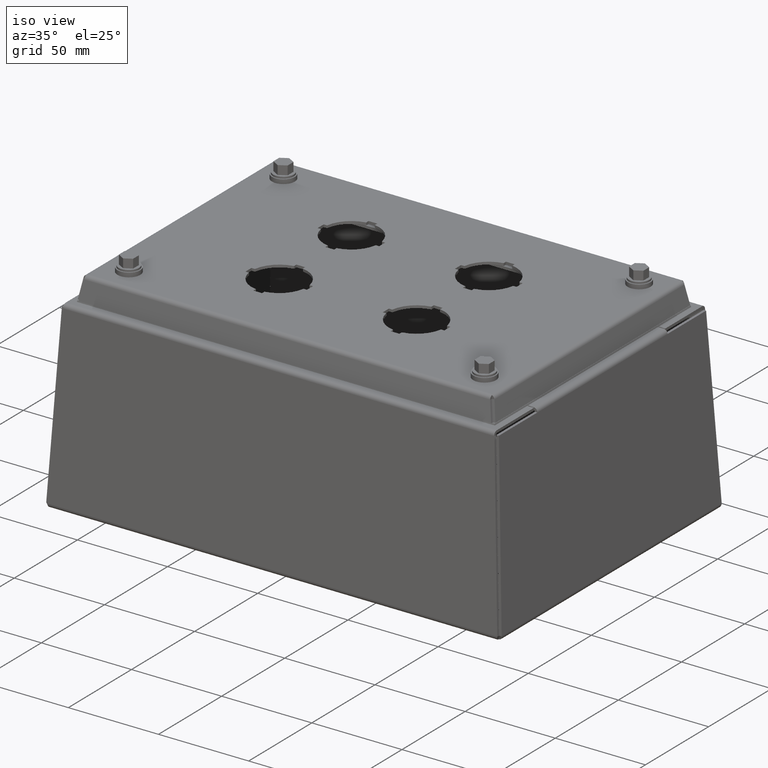
[diagram: clean part render]
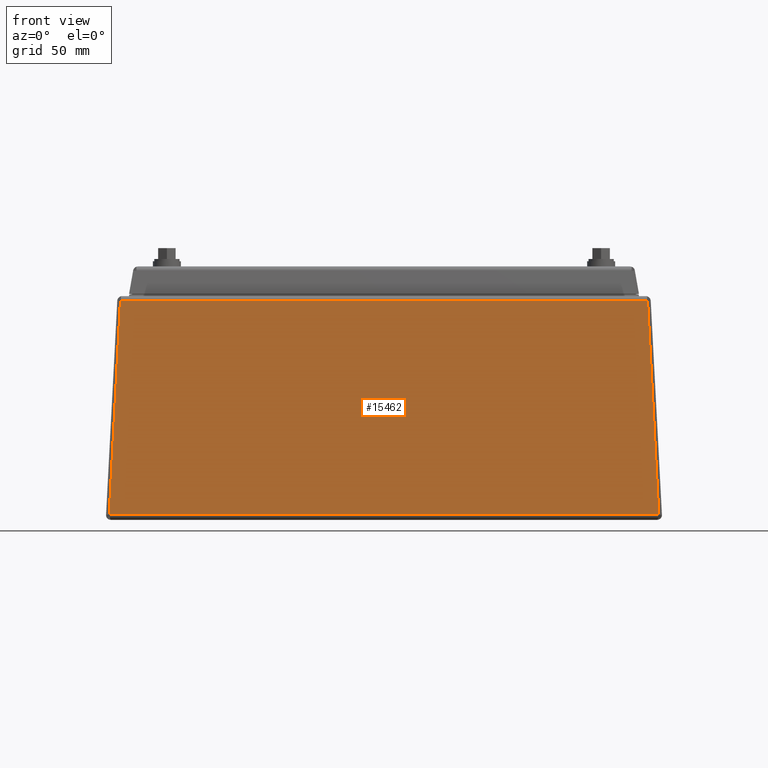
[diagram: tour spotlight — one face highlighted and labeled with its STEP entity id]
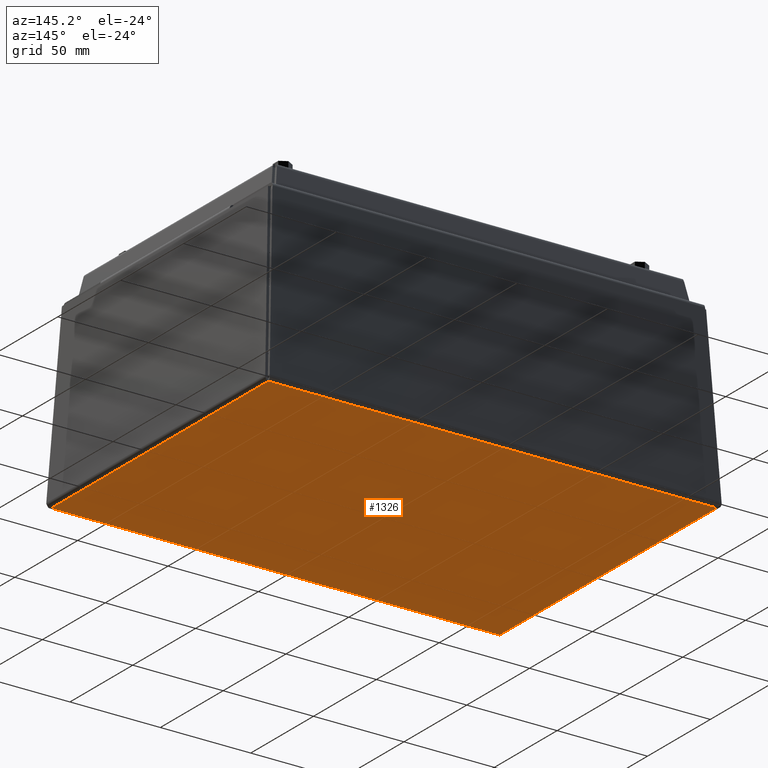
[diagram: tour spotlight — one face highlighted and labeled with its STEP entity id]
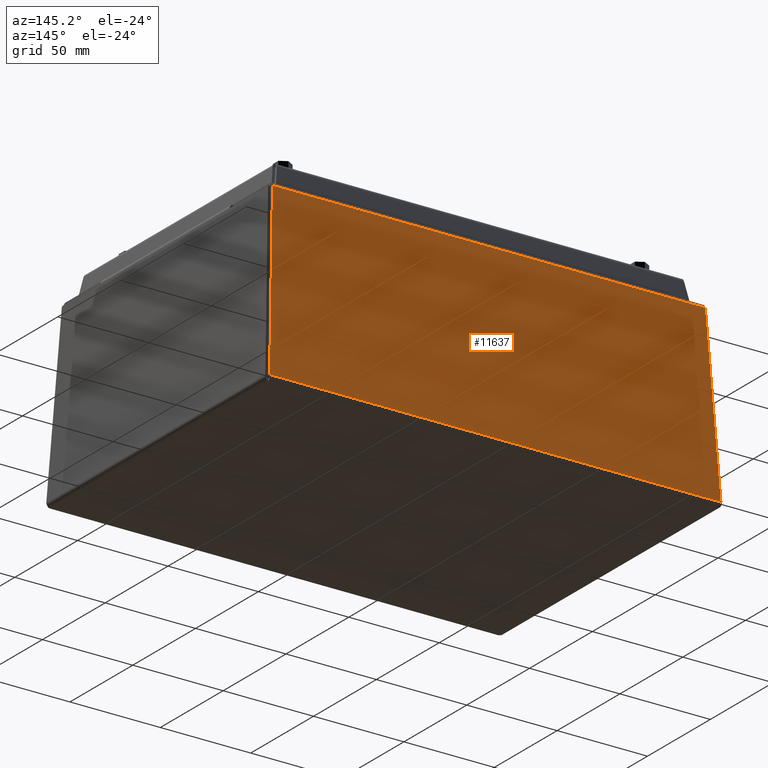
[diagram: tour spotlight — one face highlighted and labeled with its STEP entity id]
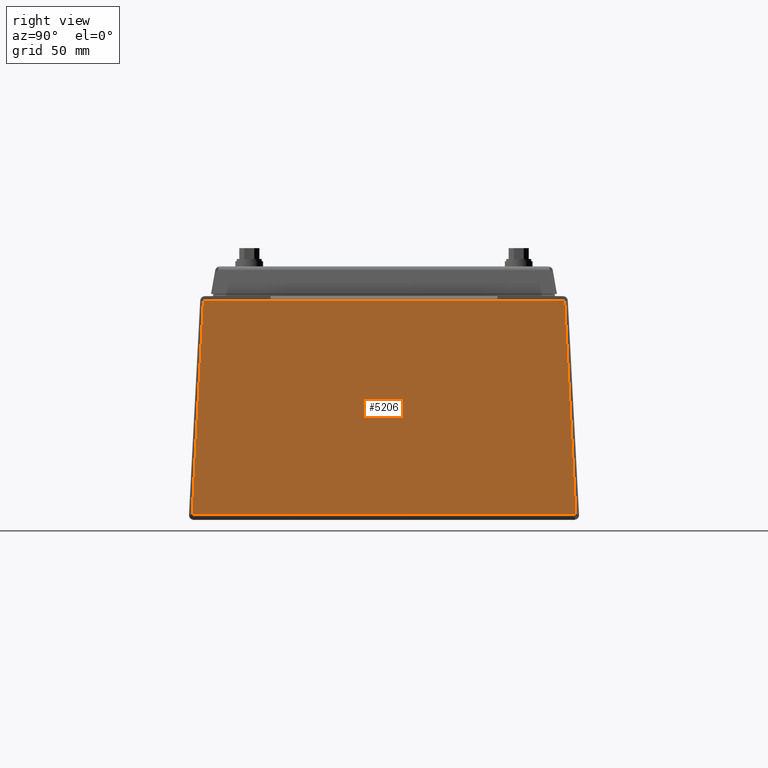
[diagram: tour spotlight — one face highlighted and labeled with its STEP entity id]
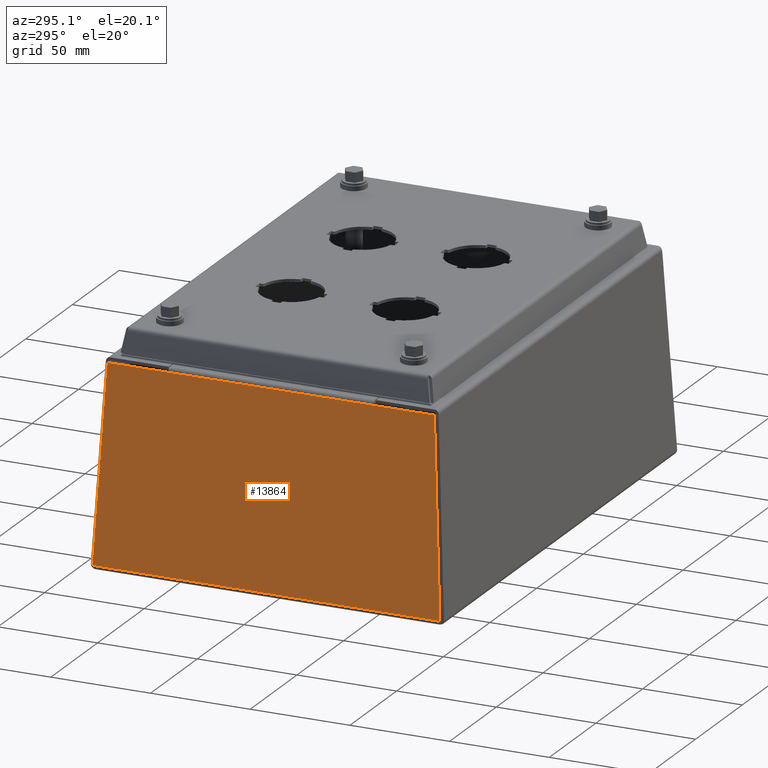
[diagram: tour spotlight — one face highlighted and labeled with its STEP entity id]
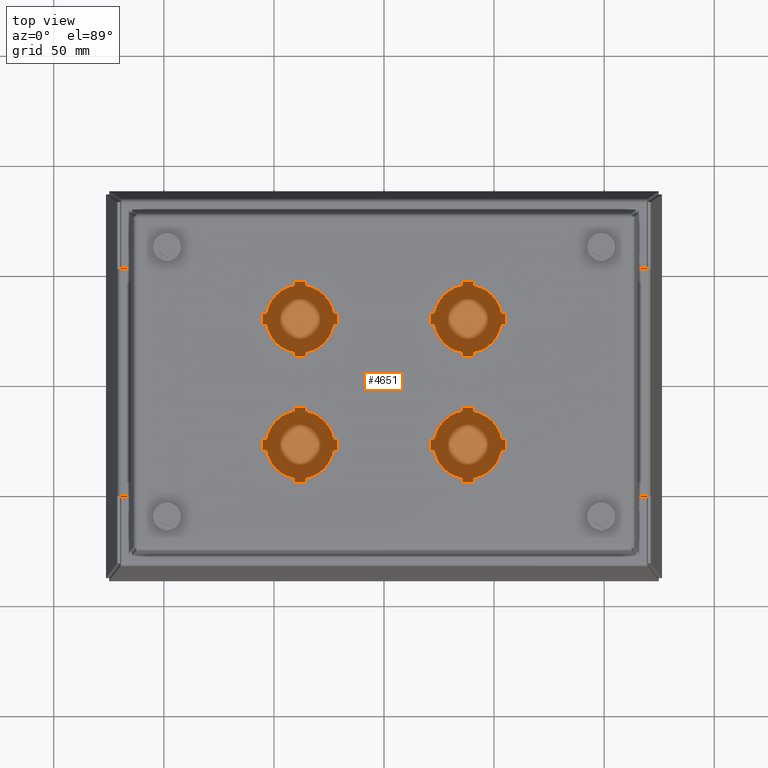
[diagram: tour spotlight — one face highlighted and labeled with its STEP entity id]
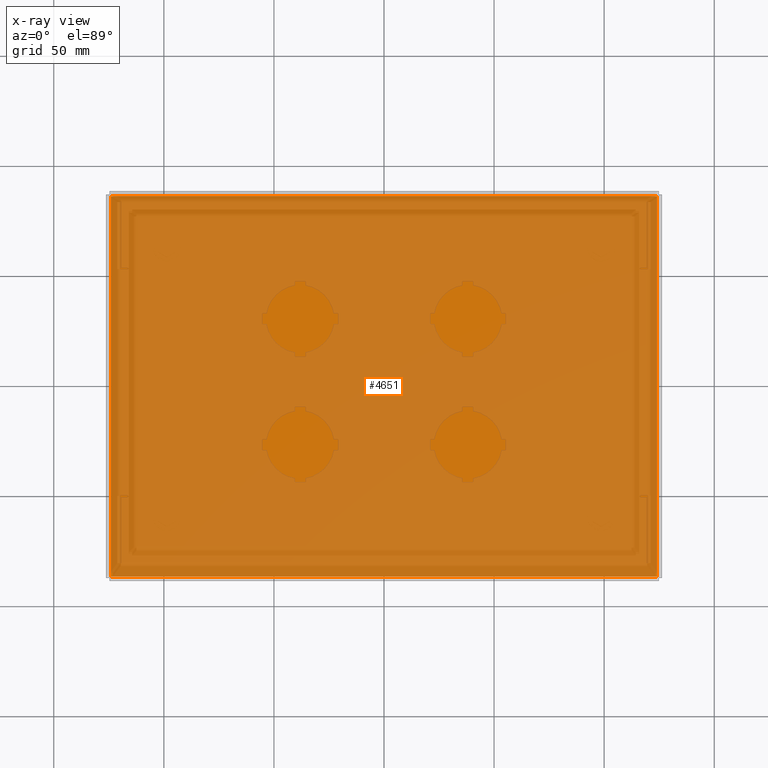
[diagram: x-ray of the same camera — body ghosted, this tour face saturated]
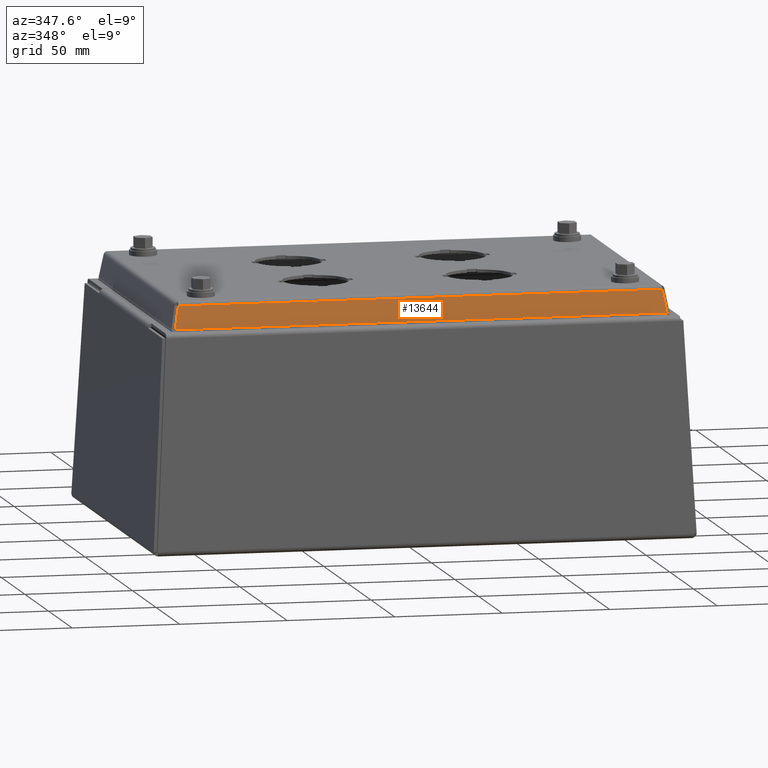
[diagram: tour spotlight — one face highlighted and labeled with its STEP entity id]
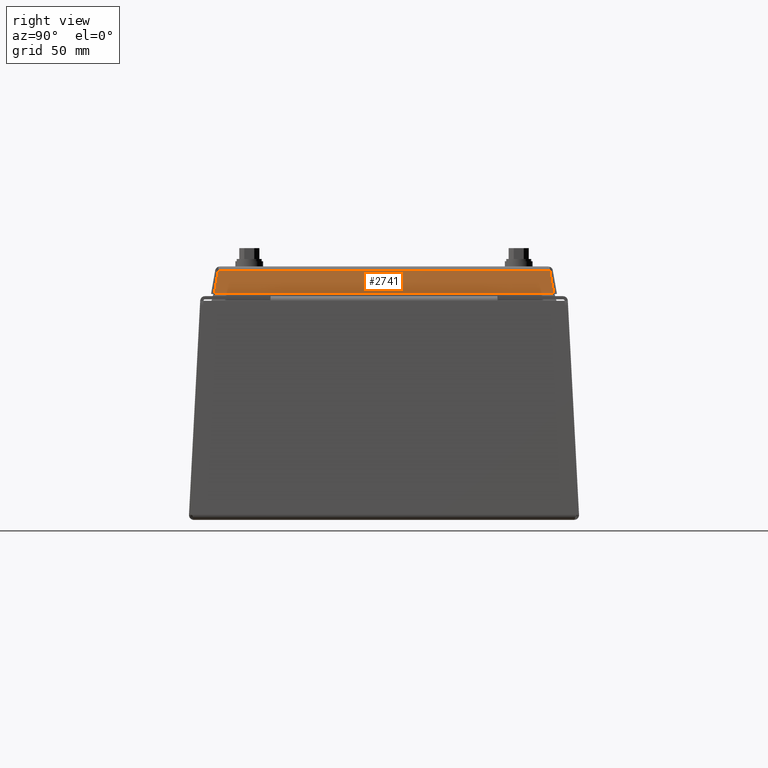
[diagram: tour spotlight — one face highlighted and labeled with its STEP entity id]
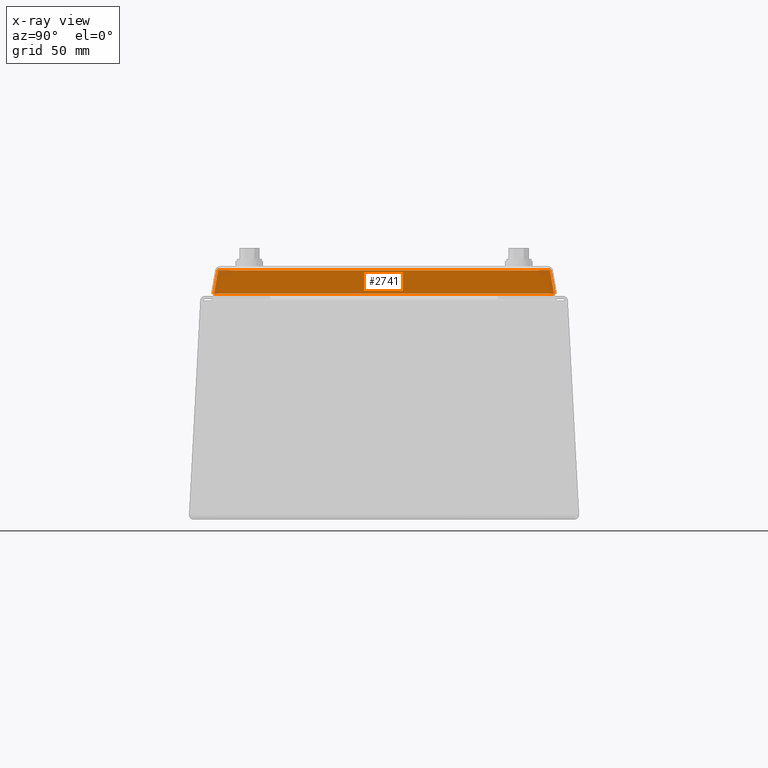
[diagram: x-ray of the same camera — body ghosted, this tour face saturated]
A machine part: a face-by-face anatomy tour. The part has 515 B-rep faces; the first image is the clean iso view, then the 8 largest visible faces are spotlighted one at a time (largest first), each with its STEP entity span.

Face 1 — front view, entity #15462. In plain terms, the highlighted planar face has unit normal (0, -0.9986, 0.0523).
Definition (entity closure, byte-faithful):
#45 = VECTOR ( 'NONE', #12166, 39.37007874015748143 ) ;
#470 = EDGE_CURVE ( 'NONE', #7317, #12452, #8490, .T. ) ;
#703 = CARTESIAN_POINT ( 'NONE',  ( 4.218015990875590759, -3.292733524574771309, 3.813020610680803113 ) ) ;
#857 = DIRECTION ( 'NONE',  ( 4.699147227556891862E-17, -0.9986295347545732781, 0.05233595624295531851 ) ) ;
#1000 = CARTESIAN_POINT ( 'NONE',  ( 4.913789277476104722, -3.487822516355748359, 0.09050089223689128382 ) ) ;
#1113 = PLANE ( 'NONE',  #10257 ) ;
#1189 = ORIENTED_EDGE ( 'NONE', *, *, #3841, .T. ) ;
#1401 = VECTOR ( 'NONE', #14367, 39.37007874015748143 ) ;
#2297 = CARTESIAN_POINT ( 'NONE',  ( 4.717332631294856249, -3.291365870174481678, 3.839117011234301380 ) ) ;
#2414 = ORIENTED_EDGE ( 'NONE', *, *, #8532, .T. ) ;
#3382 = VERTEX_POINT ( 'NONE', #2297 ) ;
#3381 = DIRECTION ( 'NONE',  ( 0.000000000000000000, -0.05233595624294379300, -0.9986295347545738332 ) ) ;
#3493 = DIRECTION ( 'NONE',  ( -0.05226442768871197159, 0.05226442768871385897, 0.9972646886342374506 ) ) ;
#3841 = EDGE_CURVE ( 'NONE', #12625, #3382, #12889, .T. ) ;
#3865 = CARTESIAN_POINT ( 'NONE',  ( -4.706732014307491774, -3.287205537260265320, 3.918500892236907784 ) ) ;
#3994 = EDGE_LOOP ( 'NONE', ( #1189, #2414, #7008, #9421, #12482, #9590 ) ) ;
#4446 = CARTESIAN_POINT ( 'NONE',  ( -4.913789277431614089, -3.487822516351799074, 0.09050089231220830033 ) ) ;
#4598 = VERTEX_POINT ( 'NONE', #6854 ) ;
#5165 = CARTESIAN_POINT ( 'NONE',  ( -4.218015990875590759, -3.292733524574772197, 3.813020610680823541 ) ) ;
#5233 = DIRECTION ( 'NONE',  ( -4.243953380302051535E-16, -0.9986295347545732781, 0.05233595624295531851 ) ) ;
#5418 = CARTESIAN_POINT ( 'NONE',  ( -4.717332631295001910, -3.291365870174635777, 3.839117011231374388 ) ) ;
#5886 = DIRECTION ( 'NONE',  ( 1.593610758070320204E-17, -0.9986295347545739443, 0.05233595624294379994 ) ) ;
#6006 = CARTESIAN_POINT ( 'NONE',  ( -4.717332631294845591, -3.291365870174480346, 3.839117011234323140 ) ) ;
#6130 = AXIS2_PLACEMENT_3D ( 'NONE', #703, #857, #15155 ) ;
#6155 = AXIS2_PLACEMENT_3D ( 'NONE', #5165, #5233, #11343 ) ;
#6300 = EDGE_CURVE ( 'NONE', #12625, #12452, #7377, .T. ) ;
#6334 = DIRECTION ( 'NONE',  ( -1.000000000000000000, -1.591426769911647489E-17, 8.340314290265274445E-19 ) ) ;
#6854 = CARTESIAN_POINT ( 'NONE',  ( 4.706732014307489109, -3.287205537260265320, 3.918500892236901567 ) ) ;
#7008 = ORIENTED_EDGE ( 'NONE', *, *, #14915, .T. ) ;
#7216 = CARTESIAN_POINT ( 'NONE',  ( 4.884940376366849968, -3.487822516355744806, 0.09050089223689113116 ) ) ;
#7263 = VERTEX_POINT ( 'NONE', #3865 ) ;
#7317 = VERTEX_POINT ( 'NONE', #5418 ) ;
#7377 = LINE ( 'NONE', #7216, #45 ) ;
#8490 = LINE ( 'NONE', #6006, #1401 ) ;
#8532 = EDGE_CURVE ( 'NONE', #3382, #4598, #9127, .T. ) ;
#8651 = LINE ( 'NONE', #13440, #12990 ) ;
#9127 = CIRCLE ( 'NONE', #6130, 0.5000000000000002220 ) ;
#9254 = FACE_OUTER_BOUND ( 'NONE', #3994, .T. ) ;
#9395 = EDGE_CURVE ( 'NONE', #7263, #7317, #12894, .T. ) ;
#9421 = ORIENTED_EDGE ( 'NONE', *, *, #9395, .T. ) ;
#9590 = ORIENTED_EDGE ( 'NONE', *, *, #6300, .F. ) ;
#10257 = AXIS2_PLACEMENT_3D ( 'NONE', #14253, #5886, #3381 ) ;
#11343 = DIRECTION ( 'NONE',  ( 0.000000000000000000, -0.05233595624295556137, -0.9986295347545732781 ) ) ;
#11974 = CARTESIAN_POINT ( 'NONE',  ( 4.913789277476103834, -3.487822516355746583, 0.09050089223689214424 ) ) ;
#12166 = DIRECTION ( 'NONE',  ( -1.000000000000000000, -5.592387589582129514E-17, 0.000000000000000000 ) ) ;
#12452 = VERTEX_POINT ( 'NONE', #4446 ) ;
#12482 = ORIENTED_EDGE ( 'NONE', *, *, #470, .T. ) ;
#12625 = VERTEX_POINT ( 'NONE', #11974 ) ;
#12889 = LINE ( 'NONE', #1000, #12994 ) ;
#12894 = CIRCLE ( 'NONE', #6155, 0.5000000000000002220 ) ;
#12990 = VECTOR ( 'NONE', #6334, 39.37007874015748143 ) ;
#12994 = VECTOR ( 'NONE', #3493, 39.37007874015748143 ) ;
#13440 = CARTESIAN_POINT ( 'NONE',  ( 34.23802301932976633, -3.287205537260265320, 3.918500892236906452 ) ) ;
#14253 = CARTESIAN_POINT ( 'NONE',  ( 34.23802301932976633, -3.489421883481012898, 0.05998314950584540672 ) ) ;
#14367 = DIRECTION ( 'NONE',  ( -0.05226442767690756691, -0.05226442768874618727, -0.9972646886348544015 ) ) ;
#14915 = EDGE_CURVE ( 'NONE', #4598, #7263, #8651, .T. ) ;
#15155 = DIRECTION ( 'NONE',  ( 0.000000000000000000, 0.05233595624295556137, 0.9986295347545732781 ) ) ;
#15462 = ADVANCED_FACE ( 'NONE', ( #9254 ), #1113, .T. ) ;

Face 2 — auxiliary view, entity #1326. In plain terms, the highlighted planar face has unit normal (0, 0, -1).
Definition (entity closure, byte-faithful):
#38 = VECTOR ( 'NONE', #7929, 39.37007874015748143 ) ;
#203 = CARTESIAN_POINT ( 'NONE',  ( -4.884940376378950511, 3.401940376364346985, -2.475737244258238603E-16 ) ) ;
#765 = DIRECTION ( 'NONE',  ( -1.000000000000000000, 0.000000000000000000, -0.000000000000000000 ) ) ;
#1326 = ADVANCED_FACE ( 'NONE', ( #11250 ), #12649, .T. ) ;
#1346 = EDGE_CURVE ( 'NONE', #3281, #14490, #1690, .T. ) ;
#1690 = LINE ( 'NONE', #15067, #15148 ) ;
#1920 = CARTESIAN_POINT ( 'NONE',  ( 0.000000000000000000, -1.030117527368787498E-15, 0.000000000000000000 ) ) ;
#3234 = CARTESIAN_POINT ( 'NONE',  ( 4.884940376366849968, -1.030117527368787498E-15, 0.000000000000000000 ) ) ;
#3281 = VERTEX_POINT ( 'NONE', #12021 ) ;
#3371 = CARTESIAN_POINT ( 'NONE',  ( -4.884940376328239076, -3.401940376372323271, 0.000000000000000000 ) ) ;
#3803 = LINE ( 'NONE', #7045, #6261 ) ;
#3931 = EDGE_LOOP ( 'NONE', ( #10046, #10441, #12125, #11077 ) ) ;
#3988 = EDGE_CURVE ( 'NONE', #14490, #6293, #3803, .T. ) ;
#4645 = LINE ( 'NONE', #3234, #38 ) ;
#4836 = LINE ( 'NONE', #7343, #11980 ) ;
#6261 = VECTOR ( 'NONE', #13861, 39.37007874015748143 ) ;
#6293 = VERTEX_POINT ( 'NONE', #203 ) ;
#6424 = AXIS2_PLACEMENT_3D ( 'NONE', #1920, #6550, #765 ) ;
#6550 = DIRECTION ( 'NONE',  ( 0.000000000000000000, 0.000000000000000000, -1.000000000000000000 ) ) ;
#6695 = DIRECTION ( 'NONE',  ( -1.000000000000000000, 0.000000000000000000, -0.000000000000000000 ) ) ;
#7045 = CARTESIAN_POINT ( 'NONE',  ( -4.884940376366849968, -1.030117527368787498E-15, 0.000000000000000000 ) ) ;
#7343 = CARTESIAN_POINT ( 'NONE',  ( 0.000000000000000000, 3.401940376366845431, 0.000000000000000000 ) ) ;
#7929 = DIRECTION ( 'NONE',  ( -0.000000000000000000, -1.000000000000000000, -0.000000000000000000 ) ) ;
#10046 = ORIENTED_EDGE ( 'NONE', *, *, #1346, .T. ) ;
#10441 = ORIENTED_EDGE ( 'NONE', *, *, #3988, .T. ) ;
#11077 = ORIENTED_EDGE ( 'NONE', *, *, #11440, .T. ) ;
#11250 = FACE_OUTER_BOUND ( 'NONE', #3931, .T. ) ;
#11332 = CARTESIAN_POINT ( 'NONE',  ( 4.884940376366849968, 3.401940376366847207, 0.000000000000000000 ) ) ;
#11440 = EDGE_CURVE ( 'NONE', #12742, #3281, #4645, .T. ) ;
#11980 = VECTOR ( 'NONE', #14544, 39.37007874015748143 ) ;
#12021 = CARTESIAN_POINT ( 'NONE',  ( 4.884940376366551540, -3.401940376360905738, 0.000000000000000000 ) ) ;
#12125 = ORIENTED_EDGE ( 'NONE', *, *, #13823, .T. ) ;
#12649 = PLANE ( 'NONE',  #6424 ) ;
#12742 = VERTEX_POINT ( 'NONE', #11332 ) ;
#13823 = EDGE_CURVE ( 'NONE', #6293, #12742, #4836, .T. ) ;
#13861 = DIRECTION ( 'NONE',  ( 0.000000000000000000, 1.000000000000000000, 0.000000000000000000 ) ) ;
#14490 = VERTEX_POINT ( 'NONE', #3371 ) ;
#14544 = DIRECTION ( 'NONE',  ( 1.000000000000000000, -0.000000000000000000, 0.000000000000000000 ) ) ;
#15067 = CARTESIAN_POINT ( 'NONE',  ( 0.000000000000000000, -3.401940376366855645, 0.000000000000000000 ) ) ;
#15148 = VECTOR ( 'NONE', #6695, 39.37007874015748143 ) ;

Face 3 — auxiliary view, entity #11637. In plain terms, the highlighted planar face has unit normal (-0, 0.9986, 0.0523).
Definition (entity closure, byte-faithful):
#2080 = ORIENTED_EDGE ( 'NONE', *, *, #4168, .T. ) ;
#2434 = DIRECTION ( 'NONE',  ( 1.000000000000000000, 1.563808929424738898E-19, 8.195575321414053458E-21 ) ) ;
#2518 = CIRCLE ( 'NONE', #7006, 0.5000000000000001110 ) ;
#3251 = VECTOR ( 'NONE', #4867, 39.37007874015748143 ) ;
#3773 = CARTESIAN_POINT ( 'NONE',  ( -4.913789277476139361, 3.487822516355750135, 0.09050089223688556617 ) ) ;
#3941 = CARTESIAN_POINT ( 'NONE',  ( -4.717332631294856249, 3.291365870174480346, 3.839117011234340460 ) ) ;
#4168 = EDGE_CURVE ( 'NONE', #4599, #5706, #7438, .T. ) ;
#4599 = VERTEX_POINT ( 'NONE', #4724 ) ;
#4603 = CARTESIAN_POINT ( 'NONE',  ( 4.706732014307485557, 3.287205537260265764, 3.918500892236900235 ) ) ;
#4724 = CARTESIAN_POINT ( 'NONE',  ( -4.706732014307493550, 3.287205537260266652, 3.918500892236899791 ) ) ;
#4759 = VERTEX_POINT ( 'NONE', #13874 ) ;
#4867 = DIRECTION ( 'NONE',  ( 0.05226442768872069378, -0.05226442768871370631, 0.9972646886342370065 ) ) ;
#5059 = EDGE_CURVE ( 'NONE', #14006, #9050, #6367, .T. ) ;
#5128 = EDGE_LOOP ( 'NONE', ( #13912, #11633, #9949, #14795, #2080, #13574 ) ) ;
#5191 = DIRECTION ( 'NONE',  ( -1.565955016350548238E-19, 0.9986295347545739443, 0.05233595624294375831 ) ) ;
#5706 = VERTEX_POINT ( 'NONE', #4603 ) ;
#6197 = CARTESIAN_POINT ( 'NONE',  ( -34.23802301932976633, 3.287205537260267540, 3.918500892236906452 ) ) ;
#6367 = LINE ( 'NONE', #3773, #3251 ) ;
#6523 = PLANE ( 'NONE',  #12778 ) ;
#7006 = AXIS2_PLACEMENT_3D ( 'NONE', #10074, #10149, #14923 ) ;
#7038 = DIRECTION ( 'NONE',  ( -4.243953380302056959E-16, 0.9986295347545733891, 0.05233595624295416665 ) ) ;
#7438 = LINE ( 'NONE', #6197, #10252 ) ;
#8039 = EDGE_CURVE ( 'NONE', #14822, #4759, #8635, .T. ) ;
#8461 = EDGE_CURVE ( 'NONE', #9050, #4599, #12627, .T. ) ;
#8635 = LINE ( 'NONE', #14755, #10097 ) ;
#9050 = VERTEX_POINT ( 'NONE', #3941 ) ;
#9088 = CARTESIAN_POINT ( 'NONE',  ( -4.218015990875590759, 3.292733524574770421, 3.813020610680842637 ) ) ;
#9338 = EDGE_CURVE ( 'NONE', #14006, #4759, #13149, .T. ) ;
#9890 = CARTESIAN_POINT ( 'NONE',  ( -34.23802301932976633, 3.489421883481015119, 0.05998314950584704430 ) ) ;
#9902 = DIRECTION ( 'NONE',  ( 0.05226442767689800512, 0.05226442768874621503, -0.9972646886348549566 ) ) ;
#9949 = ORIENTED_EDGE ( 'NONE', *, *, #5059, .T. ) ;
#10074 = CARTESIAN_POINT ( 'NONE',  ( 4.218015990875590759, 3.292733524574773085, 3.813020610680772027 ) ) ;
#10097 = VECTOR ( 'NONE', #9902, 39.37007874015748143 ) ;
#10114 = FACE_OUTER_BOUND ( 'NONE', #5128, .T. ) ;
#10149 = DIRECTION ( 'NONE',  ( 4.699147227556886932E-17, 0.9986295347545733891, 0.05233595624295416665 ) ) ;
#10252 = VECTOR ( 'NONE', #2434, 39.37007874015748143 ) ;
#10643 = DIRECTION ( 'NONE',  ( 5.463695987328524859E-15, 0.05233595624295447890, -0.9986295347545735002 ) ) ;
#10714 = DIRECTION ( 'NONE',  ( 1.000000000000000000, 4.473910071665699667E-16, 0.000000000000000000 ) ) ;
#10866 = EDGE_CURVE ( 'NONE', #5706, #14822, #2518, .T. ) ;
#11633 = ORIENTED_EDGE ( 'NONE', *, *, #9338, .F. ) ;
#11637 = ADVANCED_FACE ( 'NONE', ( #10114 ), #6523, .T. ) ;
#11899 = CARTESIAN_POINT ( 'NONE',  ( -4.884940376366849968, 3.487822516355739033, 0.09050089223688498330 ) ) ;
#12381 = AXIS2_PLACEMENT_3D ( 'NONE', #9088, #7038, #10643 ) ;
#12627 = CIRCLE ( 'NONE', #12381, 0.5000000000000001110 ) ;
#12778 = AXIS2_PLACEMENT_3D ( 'NONE', #9890, #5191, #13565 ) ;
#13149 = LINE ( 'NONE', #11899, #15142 ) ;
#13565 = DIRECTION ( 'NONE',  ( 0.000000000000000000, -0.05233595624294375137, 0.9986295347545738332 ) ) ;
#13574 = ORIENTED_EDGE ( 'NONE', *, *, #10866, .T. ) ;
#13874 = CARTESIAN_POINT ( 'NONE',  ( 4.913789277431574121, 3.487822516351798185, 0.09050089231219959895 ) ) ;
#13912 = ORIENTED_EDGE ( 'NONE', *, *, #8039, .T. ) ;
#14006 = VERTEX_POINT ( 'NONE', #14037 ) ;
#14037 = CARTESIAN_POINT ( 'NONE',  ( -4.913789277476141137, 3.487822516355743918, 0.09050089223688999318 ) ) ;
#14689 = CARTESIAN_POINT ( 'NONE',  ( 4.717332631295001910, 3.291365870174638442, 3.839117011231317989 ) ) ;
#14755 = CARTESIAN_POINT ( 'NONE',  ( 4.717332631294845591, 3.291365870174484787, 3.839117011234268517 ) ) ;
#14795 = ORIENTED_EDGE ( 'NONE', *, *, #8461, .T. ) ;
#14822 = VERTEX_POINT ( 'NONE', #14689 ) ;
#14923 = DIRECTION ( 'NONE',  ( 0.000000000000000000, -0.05233595624295447890, 0.9986295347545735002 ) ) ;
#15142 = VECTOR ( 'NONE', #10714, 39.37007874015748143 ) ;

Face 4 — right view, entity #5206. In plain terms, the highlighted planar face has unit normal (0.9986, 0, 0.0523).
Definition (entity closure, byte-faithful):
#5 = VECTOR ( 'NONE', #14796, 39.37007874015748854 ) ;
#348 = EDGE_CURVE ( 'NONE', #15267, #1051, #10457, .T. ) ;
#490 = CARTESIAN_POINT ( 'NONE',  ( 4.770205537260276962, -3.230172298380632245, 3.918500892236894462 ) ) ;
#536 = CARTESIAN_POINT ( 'NONE',  ( 4.770205537260274298, -2.027732014307489283, 3.918500892236895794 ) ) ;
#759 = VECTOR ( 'NONE', #9205, 39.37007874015748143 ) ;
#1051 = VERTEX_POINT ( 'NONE', #11960 ) ;
#1150 = LINE ( 'NONE', #10544, #9034 ) ;
#1349 = VERTEX_POINT ( 'NONE', #536 ) ;
#1626 = VECTOR ( 'NONE', #13588, 39.37007874015748143 ) ;
#2056 = VERTEX_POINT ( 'NONE', #4942 ) ;
#2082 = CARTESIAN_POINT ( 'NONE',  ( 4.770205537260276074, 23.85702301932976610, 3.918500892236898014 ) ) ;
#2236 = ORIENTED_EDGE ( 'NONE', *, *, #9350, .F. ) ;
#2812 = CARTESIAN_POINT ( 'NONE',  ( 4.970822516355743126, 3.401940376366849428, 0.09050089223689501694 ) ) ;
#3653 = VERTEX_POINT ( 'NONE', #6792 ) ;
#3737 = EDGE_CURVE ( 'NONE', #1349, #3653, #13748, .T. ) ;
#4318 = ORIENTED_EDGE ( 'NONE', *, *, #6797, .T. ) ;
#4942 = CARTESIAN_POINT ( 'NONE',  ( 4.970822516355498877, -3.430789277451923969, 0.09050089224189135362 ) ) ;
#5113 = EDGE_LOOP ( 'NONE', ( #14299, #2236, #11319, #6421, #4318, #7878 ) ) ;
#5206 = ADVANCED_FACE ( 'NONE', ( #6513 ), #14809, .T. ) ;
#5255 = DIRECTION ( 'NONE',  ( 0.9986295347545739443, 1.165995980544749573E-17, 0.05233595624294379994 ) ) ;
#6366 = VERTEX_POINT ( 'NONE', #11294 ) ;
#6406 = CARTESIAN_POINT ( 'NONE',  ( 4.970822516355757337, 3.430789277476119725, 0.09050089223689576634 ) ) ;
#6421 = ORIENTED_EDGE ( 'NONE', *, *, #348, .T. ) ;
#6513 = FACE_OUTER_BOUND ( 'NONE', #5113, .T. ) ;
#6529 = CARTESIAN_POINT ( 'NONE',  ( 4.770205537260276074, 3.230172298380643348, 3.918500892236893129 ) ) ;
#6590 = DIRECTION ( 'NONE',  ( 0.05233595624294379300, 0.000000000000000000, -0.9986295347545738332 ) ) ;
#6792 = CARTESIAN_POINT ( 'NONE',  ( 4.770205537260276074, -3.230172298380635798, 3.918500892236896682 ) ) ;
#6797 = EDGE_CURVE ( 'NONE', #1051, #1349, #1150, .T. ) ;
#7752 = CARTESIAN_POINT ( 'NONE',  ( 4.972421883481023208, 23.85702301932976610, 0.05998314950584813371 ) ) ;
#7878 = ORIENTED_EDGE ( 'NONE', *, *, #3737, .T. ) ;
#8985 = DIRECTION ( 'NONE',  ( 0.000000000000000000, -1.000000000000000000, 0.000000000000000000 ) ) ;
#8998 = AXIS2_PLACEMENT_3D ( 'NONE', #7752, #5255, #6590 ) ;
#9034 = VECTOR ( 'NONE', #15318, 39.37007874015748143 ) ;
#9205 = DIRECTION ( 'NONE',  ( 1.164398023577106455E-17, -1.000000000000000000, 6.102351461723836561E-19 ) ) ;
#9288 = CARTESIAN_POINT ( 'NONE',  ( 4.770205537260276074, 23.85702301932976610, 3.918500892236894462 ) ) ;
#9350 = EDGE_CURVE ( 'NONE', #6366, #2056, #10012, .T. ) ;
#9788 = EDGE_CURVE ( 'NONE', #6366, #15267, #12281, .T. ) ;
#10012 = LINE ( 'NONE', #2812, #10387 ) ;
#10387 = VECTOR ( 'NONE', #8985, 39.37007874015748143 ) ;
#10457 = LINE ( 'NONE', #9288, #13881 ) ;
#10544 = CARTESIAN_POINT ( 'NONE',  ( 4.770205537260276074, 23.85702301932976610, 3.918500892236894462 ) ) ;
#11294 = CARTESIAN_POINT ( 'NONE',  ( 4.970822516355750231, 3.430789277476118393, 0.09050089223689444795 ) ) ;
#11319 = ORIENTED_EDGE ( 'NONE', *, *, #9788, .T. ) ;
#11960 = CARTESIAN_POINT ( 'NONE',  ( 4.770205537260274298, 2.027732014307486619, 3.918500892236894018 ) ) ;
#12281 = LINE ( 'NONE', #6406, #1626 ) ;
#12379 = LINE ( 'NONE', #490, #5 ) ;
#13588 = DIRECTION ( 'NONE',  ( -0.05226442768871386590, -0.05226442768871145117, 0.9972646886342374506 ) ) ;
#13748 = LINE ( 'NONE', #2082, #759 ) ;
#13881 = VECTOR ( 'NONE', #13980, 39.37007874015748143 ) ;
#13980 = DIRECTION ( 'NONE',  ( 1.164398023577106455E-17, -1.000000000000000000, 6.102351461723836561E-19 ) ) ;
#14299 = ORIENTED_EDGE ( 'NONE', *, *, #14697, .T. ) ;
#14697 = EDGE_CURVE ( 'NONE', #3653, #2056, #12379, .T. ) ;
#14796 = DIRECTION ( 'NONE',  ( 0.05226442768871373407, -0.05226442768871601002, -0.9972646886342371175 ) ) ;
#14809 = PLANE ( 'NONE',  #8998 ) ;
#15267 = VERTEX_POINT ( 'NONE', #6529 ) ;
#15318 = DIRECTION ( 'NONE',  ( 1.164398023577106455E-17, -1.000000000000000000, 6.102351461723836561E-19 ) ) ;

Face 5 — auxiliary view, entity #13864. In plain terms, the highlighted planar face has unit normal (-0.9986, -0, 0.0523).
Definition (entity closure, byte-faithful):
#2 = DIRECTION ( 'NONE',  ( 0.05233595624294379300, 0.000000000000000000, 0.9986295347545738332 ) ) ;
#145 = VECTOR ( 'NONE', #2962, 39.37007874015748143 ) ;
#232 = ORIENTED_EDGE ( 'NONE', *, *, #284, .T. ) ;
#284 = EDGE_CURVE ( 'NONE', #337, #7622, #10610, .T. ) ;
#304 = VECTOR ( 'NONE', #2197, 39.37007874015748143 ) ;
#337 = VERTEX_POINT ( 'NONE', #3495 ) ;
#637 = LINE ( 'NONE', #5239, #7690 ) ;
#974 = AXIS2_PLACEMENT_3D ( 'NONE', #8587, #13378, #2 ) ;
#1399 = PLANE ( 'NONE',  #974 ) ;
#1544 = EDGE_LOOP ( 'NONE', ( #5030, #232, #4696, #4914, #12059, #5335 ) ) ;
#2197 = DIRECTION ( 'NONE',  ( -2.306353294728607240E-17, 1.000000000000000000, 1.208708544188516287E-18 ) ) ;
#2388 = VECTOR ( 'NONE', #9440, 39.37007874015748143 ) ;
#2807 = VECTOR ( 'NONE', #10330, 39.37007874015748143 ) ;
#2962 = DIRECTION ( 'NONE',  ( -0.05226442768871402550, 0.05226442768870335348, -0.9972646886342378947 ) ) ;
#3217 = CARTESIAN_POINT ( 'NONE',  ( -4.770205537260276962, -23.85702301932976610, 3.918500892236894462 ) ) ;
#3495 = CARTESIAN_POINT ( 'NONE',  ( -4.770205537260276962, -2.027732014307492392, 3.918500892236900235 ) ) ;
#4261 = CARTESIAN_POINT ( 'NONE',  ( -4.770205537260276074, -3.230172298380628249, 3.918500892236904232 ) ) ;
#4441 = CARTESIAN_POINT ( 'NONE',  ( -4.770205537260276962, 3.230172298380662887, 3.918500892236897570 ) ) ;
#4638 = CARTESIAN_POINT ( 'NONE',  ( -4.770205537260275186, -23.85702301932976610, 3.918500892236906452 ) ) ;
#4696 = ORIENTED_EDGE ( 'NONE', *, *, #11674, .T. ) ;
#4914 = ORIENTED_EDGE ( 'NONE', *, *, #9469, .T. ) ;
#5030 = ORIENTED_EDGE ( 'NONE', *, *, #13973, .T. ) ;
#5239 = CARTESIAN_POINT ( 'NONE',  ( -4.970822516355757337, -3.430789277476130383, 0.09050089223689750106 ) ) ;
#5335 = ORIENTED_EDGE ( 'NONE', *, *, #13648, .T. ) ;
#5611 = VERTEX_POINT ( 'NONE', #4441 ) ;
#5772 = CARTESIAN_POINT ( 'NONE',  ( -4.770205537260276962, -23.85702301932976610, 3.918500892236894462 ) ) ;
#7622 = VERTEX_POINT ( 'NONE', #13620 ) ;
#7690 = VECTOR ( 'NONE', #7887, 39.37007874015748854 ) ;
#7887 = DIRECTION ( 'NONE',  ( 0.05226442768871371325, 0.05226442768872154032, 0.9972646886342370065 ) ) ;
#8219 = CARTESIAN_POINT ( 'NONE',  ( -4.970822516355354104, 3.430789277439817653, 0.09050089224438839786 ) ) ;
#8273 = CARTESIAN_POINT ( 'NONE',  ( -4.970822516355750231, -3.430789277476130827, 0.09050089223690331586 ) ) ;
#8587 = CARTESIAN_POINT ( 'NONE',  ( -4.972421883481023208, -23.85702301932976610, 0.05998314950585031946 ) ) ;
#8705 = VECTOR ( 'NONE', #14262, 39.37007874015748143 ) ;
#9440 = DIRECTION ( 'NONE',  ( -2.306353294728607240E-17, 1.000000000000000000, 1.208708544188516287E-18 ) ) ;
#9469 = EDGE_CURVE ( 'NONE', #5611, #11345, #12300, .T. ) ;
#10086 = CARTESIAN_POINT ( 'NONE',  ( -4.770205537260276074, 3.230172298380673546, 3.918500892236906452 ) ) ;
#10330 = DIRECTION ( 'NONE',  ( -3.212105670801650151E-16, 1.000000000000000000, 0.000000000000000000 ) ) ;
#10610 = LINE ( 'NONE', #5772, #2388 ) ;
#10715 = VERTEX_POINT ( 'NONE', #8273 ) ;
#11345 = VERTEX_POINT ( 'NONE', #8219 ) ;
#11664 = LINE ( 'NONE', #15253, #2807 ) ;
#11674 = EDGE_CURVE ( 'NONE', #7622, #5611, #12624, .T. ) ;
#11853 = LINE ( 'NONE', #4638, #8705 ) ;
#12059 = ORIENTED_EDGE ( 'NONE', *, *, #12471, .F. ) ;
#12131 = FACE_OUTER_BOUND ( 'NONE', #1544, .T. ) ;
#12300 = LINE ( 'NONE', #10086, #145 ) ;
#12471 = EDGE_CURVE ( 'NONE', #10715, #11345, #11664, .T. ) ;
#12624 = LINE ( 'NONE', #3217, #304 ) ;
#13378 = DIRECTION ( 'NONE',  ( -0.9986295347545739443, -2.309518409442420240E-17, 0.05233595624294379994 ) ) ;
#13620 = CARTESIAN_POINT ( 'NONE',  ( -4.770205537260274298, 2.027732014307486619, 3.918500892236897570 ) ) ;
#13648 = EDGE_CURVE ( 'NONE', #10715, #13952, #637, .T. ) ;
#13864 = ADVANCED_FACE ( 'NONE', ( #12131 ), #1399, .T. ) ;
#13952 = VERTEX_POINT ( 'NONE', #4261 ) ;
#13973 = EDGE_CURVE ( 'NONE', #13952, #337, #11853, .T. ) ;
#14262 = DIRECTION ( 'NONE',  ( -2.306353294728607240E-17, 1.000000000000000000, 1.208708544188516287E-18 ) ) ;
#15253 = CARTESIAN_POINT ( 'NONE',  ( -4.970822516355743126, -3.401940376366851648, 0.09050089223689675166 ) ) ;

Face 6 — top view, entity #4651. An x-ray twin of the same camera follows (body ghosted, this face saturated) — the face is partly hidden behind the body. In plain terms, the highlighted planar face has unit normal (0, 0, -1).
Definition (entity closure, byte-faithful):
#374 = CARTESIAN_POINT ( 'NONE',  ( 0.000000000000000000, -1.030117527368787498E-15, 0.05700000000000000205 ) ) ;
#704 = ORIENTED_EDGE ( 'NONE', *, *, #1931, .T. ) ;
#1879 = EDGE_CURVE ( 'NONE', #3076, #5983, #13870, .T. ) ;
#1931 = EDGE_CURVE ( 'NONE', #3105, #8655, #7208, .T. ) ;
#2213 = CARTESIAN_POINT ( 'NONE',  ( -4.884940376366848191, -3.401940376366851648, 0.05699999999999918326 ) ) ;
#2564 = DIRECTION ( 'NONE',  ( -0.000000000000000000, 1.000000000000000000, -0.000000000000000000 ) ) ;
#3076 = VERTEX_POINT ( 'NONE', #6465 ) ;
#3105 = VERTEX_POINT ( 'NONE', #12193 ) ;
#3145 = CARTESIAN_POINT ( 'NONE',  ( 4.884940376366849968, -3.401940376366850760, 0.05700000000000000205 ) ) ;
#4651 = ADVANCED_FACE ( 'NONE', ( #11160 ), #11003, .F. ) ;
#5421 = VECTOR ( 'NONE', #8534, 39.37007874015748143 ) ;
#5572 = ORIENTED_EDGE ( 'NONE', *, *, #11831, .T. ) ;
#5983 = VERTEX_POINT ( 'NONE', #10287 ) ;
#6465 = CARTESIAN_POINT ( 'NONE',  ( -4.884940376352584934, -3.401940376368460139, 0.05699999999999959266 ) ) ;
#6527 = VECTOR ( 'NONE', #10437, 39.37007874015748143 ) ;
#6845 = EDGE_CURVE ( 'NONE', #5983, #3105, #13364, .T. ) ;
#7208 = LINE ( 'NONE', #9718, #5421 ) ;
#7919 = EDGE_LOOP ( 'NONE', ( #704, #5572, #13173, #14401 ) ) ;
#8261 = VECTOR ( 'NONE', #2564, 39.37007874015748143 ) ;
#8534 = DIRECTION ( 'NONE',  ( -1.000000000000000000, -4.473910071665699667E-16, -0.000000000000000000 ) ) ;
#8572 = CARTESIAN_POINT ( 'NONE',  ( -4.884940376365539905, 3.401940376366046070, 0.05699999999999957878 ) ) ;
#8655 = VERTEX_POINT ( 'NONE', #8572 ) ;
#9718 = CARTESIAN_POINT ( 'NONE',  ( -4.884940376366849968, 3.401940376366844987, 0.05700000000000000205 ) ) ;
#10287 = CARTESIAN_POINT ( 'NONE',  ( 4.884940376365433323, -3.401940376365210295, 0.05700000000000000205 ) ) ;
#10437 = DIRECTION ( 'NONE',  ( 3.212105670801650151E-16, -1.000000000000000000, -0.000000000000000000 ) ) ;
#10937 = CARTESIAN_POINT ( 'NONE',  ( 4.884940376366849968, 3.401940376366849428, 0.05700000000000000205 ) ) ;
#10995 = AXIS2_PLACEMENT_3D ( 'NONE', #374, #14591, #13426 ) ;
#11003 = PLANE ( 'NONE',  #10995 ) ;
#11160 = FACE_OUTER_BOUND ( 'NONE', #7919, .T. ) ;
#11608 = DIRECTION ( 'NONE',  ( 1.000000000000000000, 5.592387589582129514E-17, -0.000000000000000000 ) ) ;
#11831 = EDGE_CURVE ( 'NONE', #8655, #3076, #14181, .T. ) ;
#12193 = CARTESIAN_POINT ( 'NONE',  ( 4.884940376366849968, 3.401940376366849428, 0.05700000000000000205 ) ) ;
#13173 = ORIENTED_EDGE ( 'NONE', *, *, #1879, .T. ) ;
#13174 = VECTOR ( 'NONE', #11608, 39.37007874015748143 ) ;
#13364 = LINE ( 'NONE', #10937, #8261 ) ;
#13426 = DIRECTION ( 'NONE',  ( -1.000000000000000000, 0.000000000000000000, -0.000000000000000000 ) ) ;
#13870 = LINE ( 'NONE', #3145, #13174 ) ;
#14181 = LINE ( 'NONE', #2213, #6527 ) ;
#14401 = ORIENTED_EDGE ( 'NONE', *, *, #6845, .T. ) ;
#14591 = DIRECTION ( 'NONE',  ( 0.000000000000000000, 0.000000000000000000, -1.000000000000000000 ) ) ;

Face 7 — auxiliary view, entity #13644. In plain terms, the highlighted planar face has unit normal (0, 0.9848, -0.1736).
Definition (entity closure, byte-faithful):
#208 = LINE ( 'NONE', #3553, #8765 ) ;
#298 = LINE ( 'NONE', #5053, #6981 ) ;
#367 = ORIENTED_EDGE ( 'NONE', *, *, #6431, .T. ) ;
#488 = DIRECTION ( 'NONE',  ( 0.000000000000000000, 0.1736481776669299149, 0.9848077530122082424 ) ) ;
#968 = CARTESIAN_POINT ( 'NONE',  ( -4.503154823226864778, -3.092900220547150525, 4.041999999999997151 ) ) ;
#1565 = ORIENTED_EDGE ( 'NONE', *, *, #11512, .F. ) ;
#1623 = VERTEX_POINT ( 'NONE', #3558 ) ;
#1777 = VECTOR ( 'NONE', #12847, 39.37007874015748143 ) ;
#1798 = FACE_OUTER_BOUND ( 'NONE', #6466, .T. ) ;
#1867 = VERTEX_POINT ( 'NONE', #968 ) ;
#2548 = CARTESIAN_POINT ( 'NONE',  ( 30.93290222216984375, -3.092900220547150525, 4.041999999999999815 ) ) ;
#3289 = LINE ( 'NONE', #10489, #1777 ) ;
#3553 = CARTESIAN_POINT ( 'NONE',  ( -4.400837431718740866, -3.019030898366848792, 4.460933743908608307 ) ) ;
#3558 = CARTESIAN_POINT ( 'NONE',  ( -4.429285501157480098, -3.019030893510692870, 4.460933742727956286 ) ) ;
#3998 = VECTOR ( 'NONE', #12103, 39.37007874015748143 ) ;
#4677 = EDGE_CURVE ( 'NONE', #13430, #1867, #8632, .T. ) ;
#4730 = EDGE_CURVE ( 'NONE', #13430, #10275, #298, .T. ) ;
#5053 = CARTESIAN_POINT ( 'NONE',  ( 4.503154823226823922, -3.092900220547150969, 4.041999999999994486 ) ) ;
#6431 = EDGE_CURVE ( 'NONE', #1623, #1867, #3289, .T. ) ;
#6466 = EDGE_LOOP ( 'NONE', ( #367, #11438, #12897, #1565 ) ) ;
#6499 = PLANE ( 'NONE',  #9451 ) ;
#6981 = VECTOR ( 'NONE', #7467, 39.37007874015748854 ) ;
#7097 = CARTESIAN_POINT ( 'NONE',  ( 4.503154823226833692, -3.092900220547150525, 4.041999999999998927 ) ) ;
#7467 = DIRECTION ( 'NONE',  ( -0.1710878697460350151, 0.1710878697460399556, 0.9702875252478131429 ) ) ;
#8632 = LINE ( 'NONE', #2548, #3998 ) ;
#8765 = VECTOR ( 'NONE', #14265, 39.37007874015748143 ) ;
#8992 = CARTESIAN_POINT ( 'NONE',  ( 30.93290222216984375, -3.006500000000000838, 4.532000000000000028 ) ) ;
#9451 = AXIS2_PLACEMENT_3D ( 'NONE', #8992, #14866, #488 ) ;
#10275 = VERTEX_POINT ( 'NONE', #14966 ) ;
#10489 = CARTESIAN_POINT ( 'NONE',  ( -4.429285501049783136, -3.019030888546839542, 4.460933742158085913 ) ) ;
#11438 = ORIENTED_EDGE ( 'NONE', *, *, #4677, .F. ) ;
#11512 = EDGE_CURVE ( 'NONE', #1623, #10275, #208, .T. ) ;
#12103 = DIRECTION ( 'NONE',  ( -1.000000000000000000, 7.989094834646039677E-19, 4.530840829092996582E-18 ) ) ;
#12847 = DIRECTION ( 'NONE',  ( -0.1710878697460355147, -0.1710878924975722803, -0.9702875212361039559 ) ) ;
#12897 = ORIENTED_EDGE ( 'NONE', *, *, #4730, .T. ) ;
#13430 = VERTEX_POINT ( 'NONE', #7097 ) ;
#13644 = ADVANCED_FACE ( 'NONE', ( #1798 ), #6499, .F. ) ;
#14265 = DIRECTION ( 'NONE',  ( 1.000000000000000000, -6.123233995736769734E-17, -1.124819836996391290E-32 ) ) ;
#14866 = DIRECTION ( 'NONE',  ( 2.609207243040281014E-17, 0.9848077530122082424, -0.1736481776669299149 ) ) ;
#14966 = CARTESIAN_POINT ( 'NONE',  ( 4.429285501102002698, -3.019030898422327081, 4.460933743593980871 ) ) ;

Face 8 — right view, entity #2741. An x-ray twin of the same camera follows (body ghosted, this face saturated) — the face is partly hidden behind the body. In plain terms, the highlighted planar face has unit normal (-0.9848, 0, -0.1736).
Definition (entity closure, byte-faithful):
#122 = LINE ( 'NONE', #13412, #6783 ) ;
#331 = VECTOR ( 'NONE', #1241, 39.37007874015748143 ) ;
#431 = DIRECTION ( 'NONE',  ( 0.1710878924976275417, -0.1710878697460336273, -0.9702875212360944079 ) ) ;
#1241 = DIRECTION ( 'NONE',  ( -1.224646799147350002E-16, 1.000000000000000000, 1.836970198721026976E-16 ) ) ;
#1944 = DIRECTION ( 'NONE',  ( -0.1710878697460956888, -0.1710878697460350706, 0.9702875252478033730 ) ) ;
#2010 = DIRECTION ( 'NONE',  ( -0.9848077530122081313, 3.428310398519562011E-17, -0.1736481776669300259 ) ) ;
#2085 = CARTESIAN_POINT ( 'NONE',  ( 4.472999999999999865, 20.66740222216984080, 4.532000000000002693 ) ) ;
#2339 = DIRECTION ( 'NONE',  ( -3.985759582605832522E-19, -1.000000000000000000, -1.202042433289150328E-16 ) ) ;
#2446 = EDGE_CURVE ( 'NONE', #6352, #9403, #9548, .T. ) ;
#2741 = ADVANCED_FACE ( 'NONE', ( #5615 ), #15083, .F. ) ;
#3544 = ORIENTED_EDGE ( 'NONE', *, *, #13626, .T. ) ;
#4761 = LINE ( 'NONE', #7186, #331 ) ;
#5170 = LINE ( 'NONE', #13542, #5453 ) ;
#5453 = VECTOR ( 'NONE', #1944, 39.37007874015748143 ) ;
#5508 = ORIENTED_EDGE ( 'NONE', *, *, #2446, .F. ) ;
#5615 = FACE_OUTER_BOUND ( 'NONE', #8173, .T. ) ;
#6288 = EDGE_CURVE ( 'NONE', #12065, #9403, #122, .T. ) ;
#6352 = VERTEX_POINT ( 'NONE', #8695 ) ;
#6783 = VECTOR ( 'NONE', #431, 39.37007874015748854 ) ;
#7186 = CARTESIAN_POINT ( 'NONE',  ( 4.485530898366836716, -2.934337431718752942, 4.460933743908607418 ) ) ;
#7315 = CARTESIAN_POINT ( 'NONE',  ( 4.485530898422316781, 2.962785501102014329, 4.460933743593982648 ) ) ;
#8171 = AXIS2_PLACEMENT_3D ( 'NONE', #2085, #2010, #9063 ) ;
#8173 = EDGE_LOOP ( 'NONE', ( #9886, #5508, #3544, #13976 ) ) ;
#8695 = CARTESIAN_POINT ( 'NONE',  ( 4.559400220547165539, 3.036654823226828448, 4.042000000000001592 ) ) ;
#9063 = DIRECTION ( 'NONE',  ( 0.1736481776669299981, 1.206041662501894663E-16, -0.9848077530122080203 ) ) ;
#9403 = VERTEX_POINT ( 'NONE', #12592 ) ;
#9548 = LINE ( 'NONE', #14310, #15172 ) ;
#9886 = ORIENTED_EDGE ( 'NONE', *, *, #6288, .T. ) ;
#10186 = CARTESIAN_POINT ( 'NONE',  ( 4.485530893510687456, -2.962785501157496615, 4.460933742727930529 ) ) ;
#12065 = VERTEX_POINT ( 'NONE', #10186 ) ;
#12592 = CARTESIAN_POINT ( 'NONE',  ( 4.559400220547165539, -3.036654823226855537, 4.041999999999998927 ) ) ;
#12621 = EDGE_CURVE ( 'NONE', #12065, #15224, #4761, .T. ) ;
#13412 = CARTESIAN_POINT ( 'NONE',  ( 4.485530888546830575, -2.962785501049790771, 4.460933742158084137 ) ) ;
#13542 = CARTESIAN_POINT ( 'NONE',  ( 4.559400220547165539, 3.036654823226836442, 4.041999999999999815 ) ) ;
#13626 = EDGE_CURVE ( 'NONE', #6352, #15224, #5170, .T. ) ;
#13976 = ORIENTED_EDGE ( 'NONE', *, *, #12621, .F. ) ;
#14310 = CARTESIAN_POINT ( 'NONE',  ( 4.559400220547165539, 20.66740222216984080, 4.042000000000002480 ) ) ;
#15083 = PLANE ( 'NONE',  #8171 ) ;
#15172 = VECTOR ( 'NONE', #2339, 39.37007874015748143 ) ;
#15224 = VERTEX_POINT ( 'NONE', #7315 ) ;